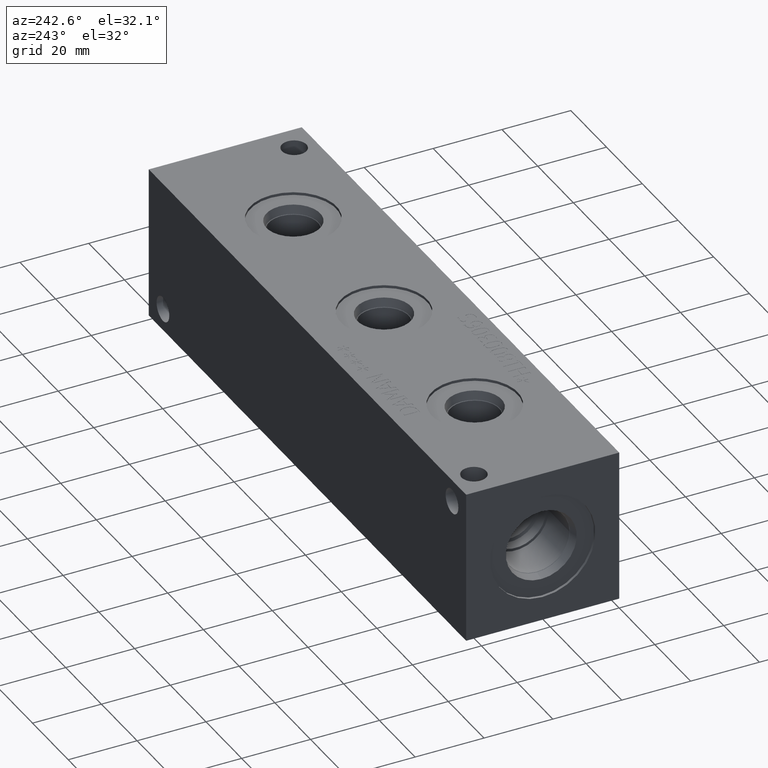
[diagram: clean part render]
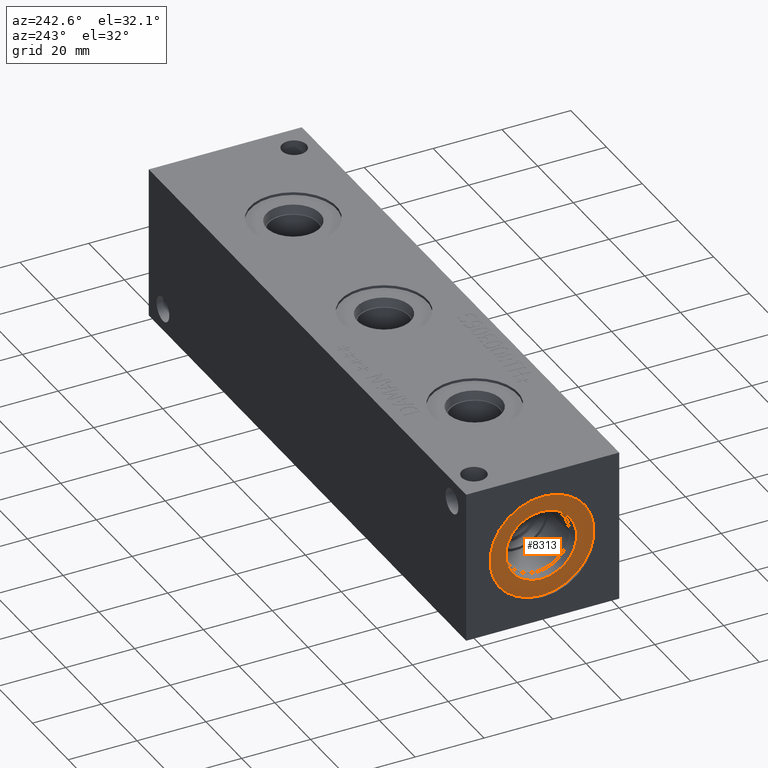
[diagram: same view with one face highlighted and labeled with its STEP entity id]
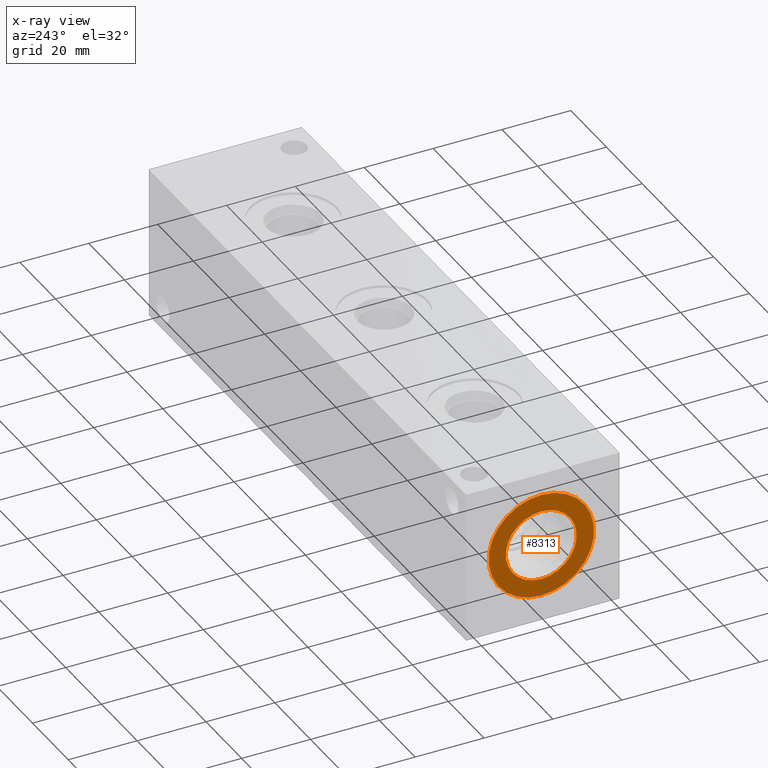
[diagram: x-ray of the same camera — body ghosted, the highlighted face saturated]
A machine part, auxiliary view. The second image highlights one B-rep face of the part: STEP entity #8313.
The next image is the same camera in x-ray: the body ghosted, the highlighted face saturated — about 0% of this face is hidden behind the body in this view.
In plain terms, the highlighted planar face has unit normal (1, 0, 0).
Its self-contained STEP definition (entity closure, byte-faithful):
#263=CIRCLE('',#8805,15.3162);
#264=CIRCLE('',#8806,15.3162);
#265=CIRCLE('',#8808,10.2997);
#266=CIRCLE('',#8809,10.2997);
#319=FACE_BOUND('',#1453,.T.);
#553=PLANE('',#8807);
#977=FACE_OUTER_BOUND('',#1452,.T.);
#1452=EDGE_LOOP('',(#7398,#7399));
#1453=EDGE_LOOP('',(#7400,#7401));
#3969=VERTEX_POINT('',#14401);
#3970=VERTEX_POINT('',#14403);
#3971=VERTEX_POINT('',#14407);
#3972=VERTEX_POINT('',#14408);
#5122=EDGE_CURVE('',#3969,#3970,#263,.T.);
#5123=EDGE_CURVE('',#3970,#3969,#264,.T.);
#5124=EDGE_CURVE('',#3971,#3972,#265,.T.);
#5125=EDGE_CURVE('',#3972,#3971,#266,.T.);
#7398=ORIENTED_EDGE('',*,*,#5123,.F.);
#7399=ORIENTED_EDGE('',*,*,#5122,.F.);
#7400=ORIENTED_EDGE('',*,*,#5124,.T.);
#7401=ORIENTED_EDGE('',*,*,#5125,.T.);
#8313=ADVANCED_FACE('',(#977,#319),#553,.F.);
#8805=AXIS2_PLACEMENT_3D('',#14404,#10497,#10498);
#8806=AXIS2_PLACEMENT_3D('',#14405,#10499,#10500);
#8807=AXIS2_PLACEMENT_3D('',#14406,#10501,#10502);
#8808=AXIS2_PLACEMENT_3D('',#14409,#10503,#10504);
#8809=AXIS2_PLACEMENT_3D('',#14410,#10505,#10506);
#10497=DIRECTION('center_axis',(1.,0.,0.));
#10498=DIRECTION('ref_axis',(0.,0.,-1.));
#10499=DIRECTION('center_axis',(1.,0.,0.));
#10500=DIRECTION('ref_axis',(0.,0.,-1.));
#10501=DIRECTION('center_axis',(1.,0.,0.));
#10502=DIRECTION('ref_axis',(0.,0.,-1.));
#10503=DIRECTION('center_axis',(1.,0.,0.));
#10504=DIRECTION('ref_axis',(0.,0.,-1.));
#10505=DIRECTION('center_axis',(1.,0.,0.));
#10506=DIRECTION('ref_axis',(0.,0.,-1.));
#14401=CARTESIAN_POINT('',(0.7874,22.225,6.9088));
#14403=CARTESIAN_POINT('',(0.7874,22.225,37.5412));
#14404=CARTESIAN_POINT('Origin',(0.7874,22.225,22.225));
#14405=CARTESIAN_POINT('Origin',(0.7874,22.225,22.225));
#14406=CARTESIAN_POINT('Origin',(0.7874,22.225,32.5247));
#14407=CARTESIAN_POINT('',(0.7874,22.225,32.5247));
#14408=CARTESIAN_POINT('',(0.7874,22.225,11.9253));
#14409=CARTESIAN_POINT('Origin',(0.7874,22.225,22.225));
#14410=CARTESIAN_POINT('Origin',(0.7874,22.225,22.225));